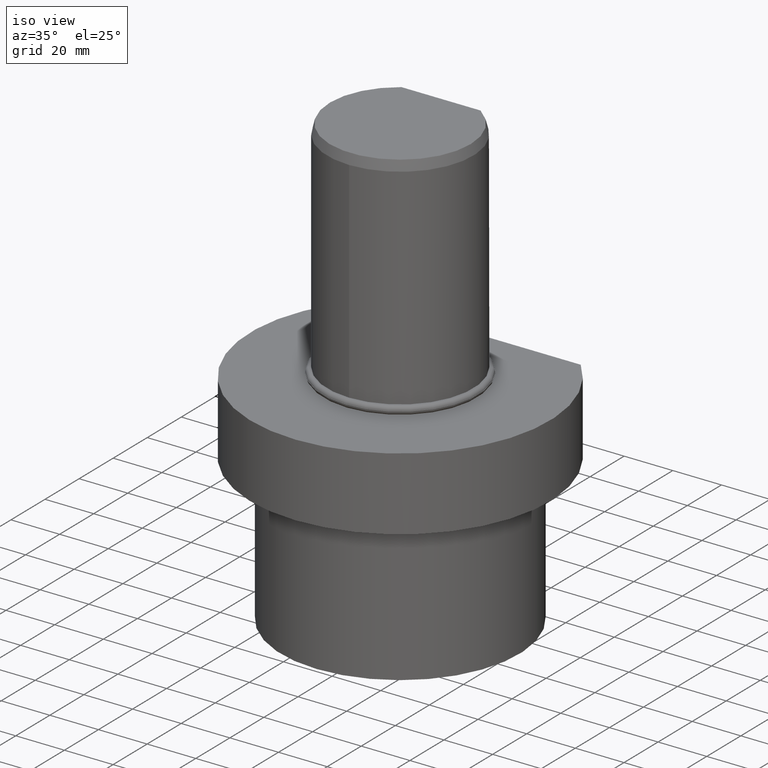
[diagram: clean part render]
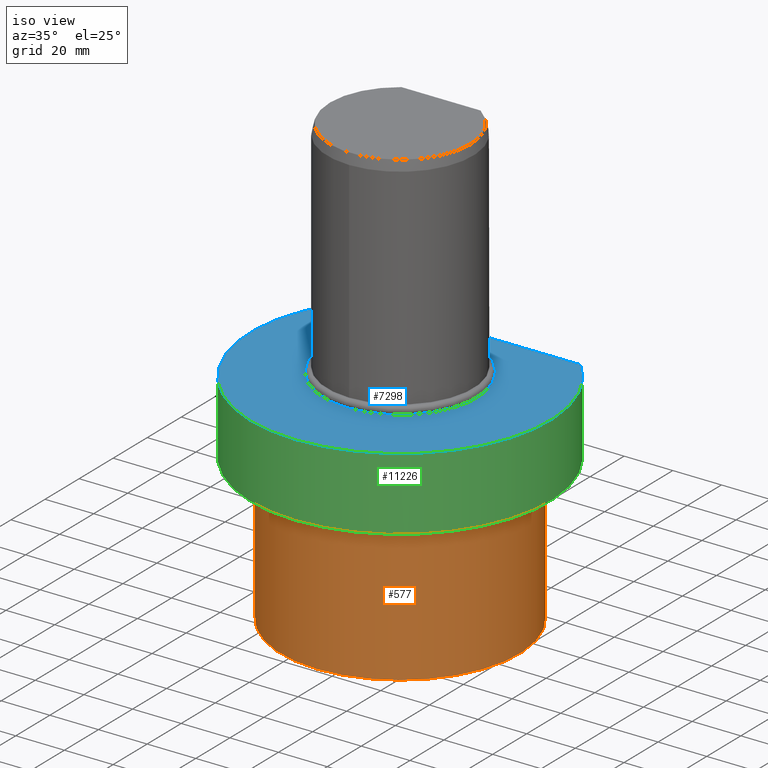
[diagram: same view with three faces highlighted in distinct colors, each labeled with its STEP entity id]
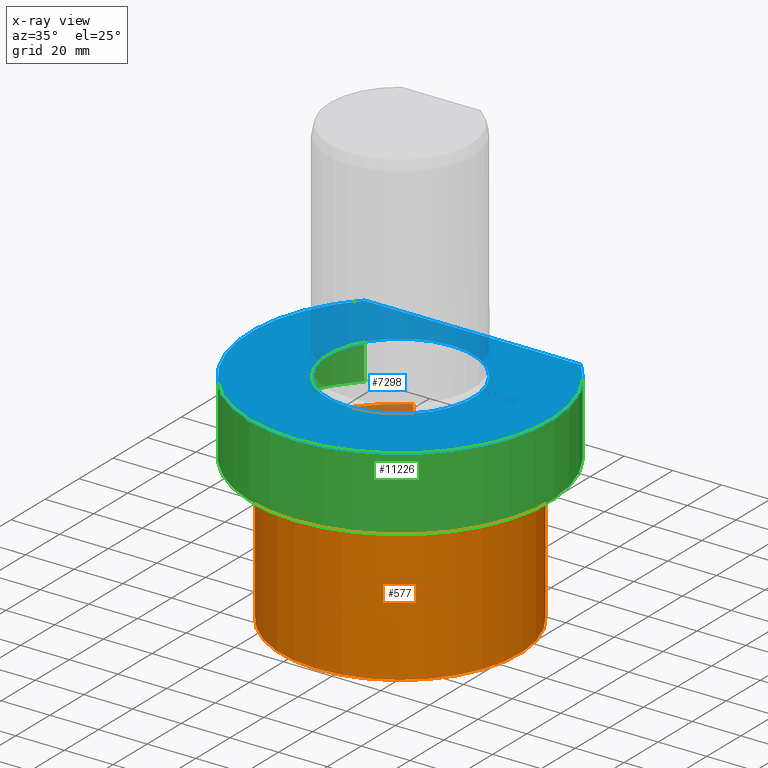
[diagram: x-ray of the same camera — body ghosted, the three highlighted faces saturated]
A machine part, iso view with three faces highlighted in distinct colors.
The next image is the same camera in x-ray (body ghosted, the three faces saturated) — at least one of them is partly hidden behind the body in this view.
Their STEP definitions:

[orange] entity #577 — the highlighted cylindrical surface (partial cylindrical patch) has radius 49 mm, axis along (0, 0, 1).
#44 = CYLINDRICAL_SURFACE ( 'NONE', #8087, 49.00000000000000000 ) ;
#503 = DIRECTION ( 'NONE',  ( -3.834758505292830236E-17, -1.000000000000000000, 1.416100796715760863E-16 ) ) ;
#541 = CARTESIAN_POINT ( 'NONE',  ( 24.38749679651440161, 42.50000000000000000, -90.00000000000000000 ) ) ;
#577 = ADVANCED_FACE ( 'Defeature completata1_48', ( #6399 ), #44, .T. ) ;
#1274 = ORIENTED_EDGE ( 'NONE', *, *, #12100, .T. ) ;
#1743 = DIRECTION ( 'NONE',  ( -4.440892098500630106E-16, -1.224646799147350002E-16, -1.000000000000000000 ) ) ;
#2854 = DIRECTION ( 'NONE',  ( 4.440892098500630106E-16, 1.224646799147350002E-16, 1.000000000000000000 ) ) ;
#3473 = VERTEX_POINT ( 'NONE', #11942 ) ;
#3825 = VECTOR ( 'NONE', #7984, 1000.000000000000000 ) ;
#3863 = CARTESIAN_POINT ( 'NONE',  ( -24.38749679651440161, 42.50000000000000000, -90.00000000000000000 ) ) ;
#3972 = LINE ( 'NONE', #541, #6031 ) ;
#4018 = CIRCLE ( 'NONE', #4689, 49.00000000000000000 ) ;
#4346 = ORIENTED_EDGE ( 'NONE', *, *, #12198, .T. ) ;
#4405 = CARTESIAN_POINT ( 'NONE',  ( 24.38749679651440161, 42.50000000000000000, -90.00000000000000000 ) ) ;
#4689 = AXIS2_PLACEMENT_3D ( 'NONE', #9196, #13318, #503 ) ;
#5477 = DIRECTION ( 'NONE',  ( 4.440892098500630106E-16, 1.224646799147350002E-16, 1.000000000000000000 ) ) ;
#6031 = VECTOR ( 'NONE', #2854, 1000.000000000000000 ) ;
#6302 = CARTESIAN_POINT ( 'NONE',  ( 24.38749679651441937, 42.49999999999999289, -33.00000000000001421 ) ) ;
#6399 = FACE_OUTER_BOUND ( 'NONE', #9631, .T. ) ;
#6777 = VERTEX_POINT ( 'NONE', #6302 ) ;
#7503 = CIRCLE ( 'NONE', #9066, 49.00000000000000000 ) ;
#7855 = EDGE_CURVE ( 'NONE', #12321, #3473, #7503, .T. ) ;
#7984 = DIRECTION ( 'NONE',  ( -4.440892098500630106E-16, -1.224646799147350002E-16, -1.000000000000000000 ) ) ;
#8087 = AXIS2_PLACEMENT_3D ( 'NONE', #12668, #5477, #8599 ) ;
#8599 = DIRECTION ( 'NONE',  ( -2.832769448823990301E-16, -1.000000000000000000, 0.000000000000000000 ) ) ;
#9066 = AXIS2_PLACEMENT_3D ( 'NONE', #11320, #1743, #9933 ) ;
#9193 = EDGE_CURVE ( 'NONE', #13426, #6777, #4018, .T. ) ;
#9196 = CARTESIAN_POINT ( 'NONE',  ( -1.465494392505209789E-14, -4.041334437186259889E-15, -33.00000000000000000 ) ) ;
#9631 = EDGE_LOOP ( 'NONE', ( #10431, #1274, #11091, #4346 ) ) ;
#9933 = DIRECTION ( 'NONE',  ( 1.608122649676639805E-16, 1.000000000000000000, 0.000000000000000000 ) ) ;
#10169 = LINE ( 'NONE', #3863, #3825 ) ;
#10431 = ORIENTED_EDGE ( 'NONE', *, *, #9193, .F. ) ;
#11091 = ORIENTED_EDGE ( 'NONE', *, *, #7855, .F. ) ;
#11320 = CARTESIAN_POINT ( 'NONE',  ( -3.996802888650559759E-14, -1.102182119232619962E-14, -90.00000000000000000 ) ) ;
#11942 = CARTESIAN_POINT ( 'NONE',  ( -24.38749679651440161, 42.50000000000000000, -90.00000000000000000 ) ) ;
#12100 = EDGE_CURVE ( 'NONE', #13426, #3473, #10169, .T. ) ;
#12198 = EDGE_CURVE ( 'NONE', #12321, #6777, #3972, .T. ) ;
#12213 = CARTESIAN_POINT ( 'NONE',  ( -24.38749679651438385, 42.50000000000000711, -33.00000000000000000 ) ) ;
#12321 = VERTEX_POINT ( 'NONE', #4405 ) ;
#12668 = CARTESIAN_POINT ( 'NONE',  ( -3.996802888650559759E-14, -1.102182119232619962E-14, -90.00000000000000000 ) ) ;
#13318 = DIRECTION ( 'NONE',  ( 4.440892098500630106E-16, 1.224646799147350002E-16, 1.000000000000000000 ) ) ;
#13426 = VERTEX_POINT ( 'NONE', #12213 ) ;

[blue] entity #7298 — the highlighted planar face has unit normal (-0, -0, -1).
#335 = DIRECTION ( 'NONE',  ( -4.440892098500630106E-16, -1.224646799147350002E-16, -1.000000000000000000 ) ) ;
#1310 = CARTESIAN_POINT ( 'NONE',  ( 44.45222154178569696, 42.50000000000000000, -2.494550083694779877E-14 ) ) ;
#2882 = CARTESIAN_POINT ( 'NONE',  ( -22.22611077089289822, 42.50000000000000000, 4.665627073909529744E-15 ) ) ;
#3112 = ORIENTED_EDGE ( 'NONE', *, *, #9254, .T. ) ;
#3163 = VERTEX_POINT ( 'NONE', #3733 ) ;
#3260 = FACE_BOUND ( 'NONE', #13207, .T. ) ;
#3576 = CARTESIAN_POINT ( 'NONE',  ( 0.000000000000000000, 0.000000000000000000, 0.000000000000000000 ) ) ;
#3733 = CARTESIAN_POINT ( 'NONE',  ( -44.45222154178569696, 42.50000000000000000, 1.453600304419530171E-14 ) ) ;
#3815 = AXIS2_PLACEMENT_3D ( 'NONE', #6994, #11216, #6057 ) ;
#4309 = DIRECTION ( 'NONE',  ( -1.000000000000000000, 0.000000000000000000, 4.440892098500630106E-16 ) ) ;
#4817 = AXIS2_PLACEMENT_3D ( 'NONE', #7231, #7374, #4309 ) ;
#5073 = EDGE_LOOP ( 'NONE', ( #3112, #11225 ) ) ;
#5394 = EDGE_CURVE ( 'NONE', #5890, #3163, #9670, .T. ) ;
#5498 = DIRECTION ( 'NONE',  ( -1.608122649676639805E-16, -1.000000000000000000, 1.224646799147350002E-16 ) ) ;
#5890 = VERTEX_POINT ( 'NONE', #1310 ) ;
#6057 = DIRECTION ( 'NONE',  ( -1.608122649676639805E-16, -1.000000000000000000, 1.224646799147350002E-16 ) ) ;
#6994 = CARTESIAN_POINT ( 'NONE',  ( 0.000000000000000000, 0.000000000000000000, 0.000000000000000000 ) ) ;
#7231 = CARTESIAN_POINT ( 'NONE',  ( 0.000000000000000000, 0.000000000000000000, 0.000000000000000000 ) ) ;
#7298 = ADVANCED_FACE ( 'Defeature completata1_47', ( #3260, #12647 ), #11512, .F. ) ;
#7374 = DIRECTION ( 'NONE',  ( -4.440892098500630106E-16, -1.224646799147350002E-16, -1.000000000000000000 ) ) ;
#9254 = EDGE_CURVE ( 'NONE', #5890, #3163, #12271, .T. ) ;
#9670 = CIRCLE ( 'NONE', #12565, 61.50000000000000000 ) ;
#9872 = CIRCLE ( 'NONE', #3815, 30.00000000000000000 ) ;
#10175 = EDGE_CURVE ( 'NONE', #13735, #13735, #9872, .T. ) ;
#11216 = DIRECTION ( 'NONE',  ( -4.440892098500630106E-16, -1.224646799147350002E-16, -1.000000000000000000 ) ) ;
#11225 = ORIENTED_EDGE ( 'NONE', *, *, #5394, .F. ) ;
#11356 = DIRECTION ( 'NONE',  ( -1.000000000000000000, 1.608122649676639805E-16, 4.440892098500630106E-16 ) ) ;
#11512 = PLANE ( 'NONE',  #4817 ) ;
#12271 = LINE ( 'NONE', #2882, #13632 ) ;
#12565 = AXIS2_PLACEMENT_3D ( 'NONE', #3576, #335, #5498 ) ;
#12647 = FACE_OUTER_BOUND ( 'NONE', #5073, .T. ) ;
#12758 = ORIENTED_EDGE ( 'NONE', *, *, #10175, .T. ) ;
#12832 = CARTESIAN_POINT ( 'NONE',  ( -4.824367949029919120E-15, -30.00000000000000000, 3.673940397442049711E-15 ) ) ;
#13207 = EDGE_LOOP ( 'NONE', ( #12758 ) ) ;
#13632 = VECTOR ( 'NONE', #11356, 1000.000000000000000 ) ;
#13735 = VERTEX_POINT ( 'NONE', #12832 ) ;

[green] entity #11226 — the highlighted cylindrical surface (partial cylindrical patch) has radius 61.5 mm, axis along (-0, -0, -1).
#335 = DIRECTION ( 'NONE',  ( -4.440892098500630106E-16, -1.224646799147350002E-16, -1.000000000000000000 ) ) ;
#350 = CARTESIAN_POINT ( 'NONE',  ( 0.000000000000000000, 0.000000000000000000, 0.000000000000000000 ) ) ;
#423 = CARTESIAN_POINT ( 'NONE',  ( 44.45222154178569696, 42.50000000000000000, -30.00000000000000000 ) ) ;
#1310 = CARTESIAN_POINT ( 'NONE',  ( 44.45222154178569696, 42.50000000000000000, -2.494550083694779877E-14 ) ) ;
#1910 = ORIENTED_EDGE ( 'NONE', *, *, #10820, .T. ) ;
#1930 = VECTOR ( 'NONE', #12451, 1000.000000000000000 ) ;
#2075 = ORIENTED_EDGE ( 'NONE', *, *, #12298, .T. ) ;
#2522 = VERTEX_POINT ( 'NONE', #4859 ) ;
#2660 = CYLINDRICAL_SURFACE ( 'NONE', #10290, 61.50000000000000000 ) ;
#2736 = DIRECTION ( 'NONE',  ( -4.440892098500630106E-16, -1.224646799147350002E-16, -1.000000000000000000 ) ) ;
#3163 = VERTEX_POINT ( 'NONE', #3733 ) ;
#3185 = VECTOR ( 'NONE', #9674, 1000.000000000000000 ) ;
#3576 = CARTESIAN_POINT ( 'NONE',  ( 0.000000000000000000, 0.000000000000000000, 0.000000000000000000 ) ) ;
#3733 = CARTESIAN_POINT ( 'NONE',  ( -44.45222154178569696, 42.50000000000000000, 1.453600304419530171E-14 ) ) ;
#4234 = ORIENTED_EDGE ( 'NONE', *, *, #8685, .T. ) ;
#4252 = CARTESIAN_POINT ( 'NONE',  ( 44.45222154178569696, 42.50000000000000000, -2.494550083694779877E-14 ) ) ;
#4859 = CARTESIAN_POINT ( 'NONE',  ( -44.45222154178569696, 42.50000000000000000, -30.00000000000000000 ) ) ;
#5198 = LINE ( 'NONE', #4252, #1930 ) ;
#5394 = EDGE_CURVE ( 'NONE', #5890, #3163, #9670, .T. ) ;
#5498 = DIRECTION ( 'NONE',  ( -1.608122649676639805E-16, -1.000000000000000000, 1.224646799147350002E-16 ) ) ;
#5890 = VERTEX_POINT ( 'NONE', #1310 ) ;
#7400 = LINE ( 'NONE', #8602, #3185 ) ;
#8269 = AXIS2_PLACEMENT_3D ( 'NONE', #12806, #11524, #9371 ) ;
#8499 = CIRCLE ( 'NONE', #8269, 61.50000000000000000 ) ;
#8601 = EDGE_LOOP ( 'NONE', ( #2075, #1910, #4234, #12295 ) ) ;
#8602 = CARTESIAN_POINT ( 'NONE',  ( -44.45222154178569696, 42.50000000000000000, 1.453600304419530171E-14 ) ) ;
#8685 = EDGE_CURVE ( 'NONE', #9089, #5890, #5198, .T. ) ;
#9089 = VERTEX_POINT ( 'NONE', #423 ) ;
#9101 = DIRECTION ( 'NONE',  ( -1.608122649676639805E-16, -1.000000000000000000, 1.224646799147350002E-16 ) ) ;
#9371 = DIRECTION ( 'NONE',  ( -1.608122649676639805E-16, -1.000000000000000000, 1.128275431529630729E-16 ) ) ;
#9670 = CIRCLE ( 'NONE', #12565, 61.50000000000000000 ) ;
#9674 = DIRECTION ( 'NONE',  ( -4.440892098500630106E-16, -1.224646799147350002E-16, -1.000000000000000000 ) ) ;
#10290 = AXIS2_PLACEMENT_3D ( 'NONE', #350, #2736, #9101 ) ;
#10820 = EDGE_CURVE ( 'NONE', #2522, #9089, #8499, .T. ) ;
#11226 = ADVANCED_FACE ( 'Defeature completata1_52', ( #12257 ), #2660, .T. ) ;
#11524 = DIRECTION ( 'NONE',  ( 4.440892098500630106E-16, 1.224646799147350002E-16, 1.000000000000000000 ) ) ;
#12257 = FACE_OUTER_BOUND ( 'NONE', #8601, .T. ) ;
#12295 = ORIENTED_EDGE ( 'NONE', *, *, #5394, .T. ) ;
#12298 = EDGE_CURVE ( 'NONE', #3163, #2522, #7400, .T. ) ;
#12451 = DIRECTION ( 'NONE',  ( 4.440892098500630106E-16, 1.224646799147350002E-16, 1.000000000000000000 ) ) ;
#12565 = AXIS2_PLACEMENT_3D ( 'NONE', #3576, #335, #5498 ) ;
#12806 = CARTESIAN_POINT ( 'NONE',  ( -1.332267629550189900E-14, -3.673940397442059967E-15, -30.00000000000000000 ) ) ;